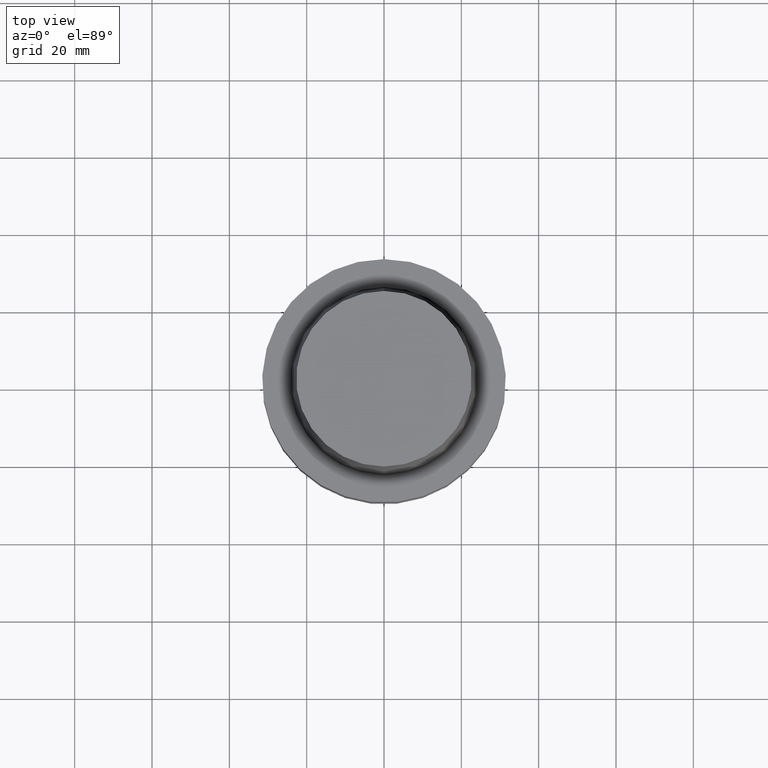
[diagram: clean part render]
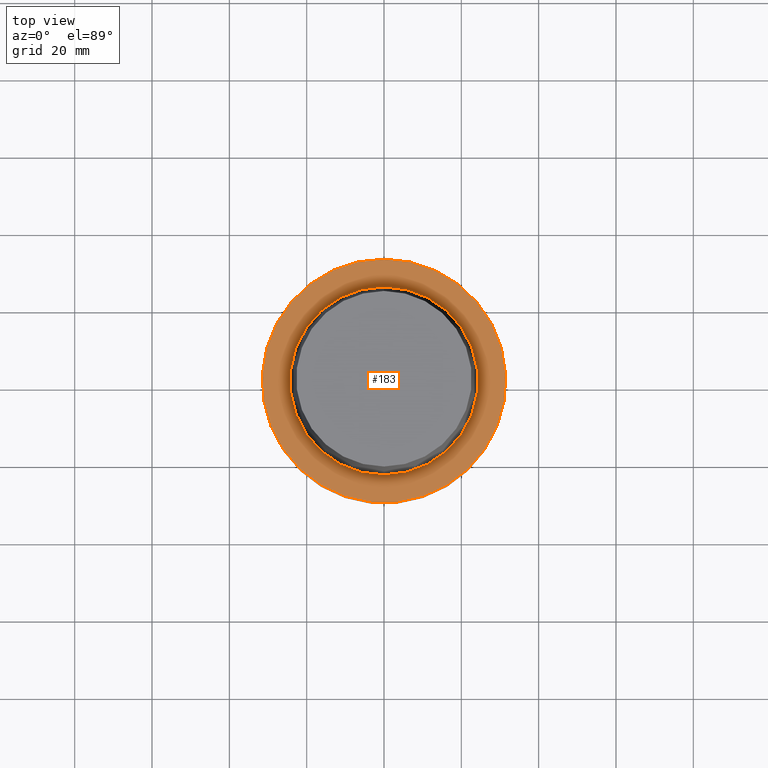
[diagram: same view with one face highlighted and labeled with its STEP entity id]
A machine part, top view. The second image highlights one B-rep face of the part: STEP entity #183.
In plain terms, the highlighted planar face has unit normal (-0, -0, 1).
Its self-contained STEP definition (entity closure, byte-faithful):
#156=EDGE_CURVE('Unnamed[1]',#334,#334,#335,.T.);
#172=EDGE_CURVE('Unnamed[1]',#358,#358,#359,.T.);
#183=ADVANCED_FACE('Unnamed[1]',(#374,#375),#376,.T.);
#334=VERTEX_POINT('',#554);
#335=CIRCLE('',#555,31.5000000000001);
#358=VERTEX_POINT('',#583);
#359=CIRCLE('',#584,24.315);
#374=FACE_BOUND('',#604,.T.);
#375=FACE_OUTER_BOUND('',#605,.T.);
#376=PLANE('',#606);
#554=CARTESIAN_POINT('',(-3.88267476788467E-031,31.5000000000001,3.85763741731417E-015));
#555=AXIS2_PLACEMENT_3D('',#765,#766,#767);
#583=CARTESIAN_POINT('',(-2.99705514225764E-031,24.315,2.97772869212679E-015));
#584=AXIS2_PLACEMENT_3D('',#790,#791,#792);
#604=EDGE_LOOP('',(#806));
#605=EDGE_LOOP('',(#807));
#606=AXIS2_PLACEMENT_3D('',#808,#809,#810);
#765=CARTESIAN_POINT('',(0.0,0.0,0.0));
#766=DIRECTION('',(-6.12323399573677E-017,-1.22464679914735E-016,1.0));
#767=DIRECTION('',(-1.23259516440783E-032,1.0,1.22464679914735E-016));
#790=CARTESIAN_POINT('',(0.0,0.0,0.0));
#791=DIRECTION('',(-6.12323399573677E-017,-1.22464679914735E-016,1.0));
#792=DIRECTION('',(-1.23259516440783E-032,1.0,1.22464679914735E-016));
#806=ORIENTED_EDGE('',*,*,#172,.F.);
#807=ORIENTED_EDGE('',*,*,#156,.T.);
#808=CARTESIAN_POINT('',(-3.43986495507116E-031,27.9075,3.41768305472048E-015));
#809=DIRECTION('',(-6.12323399573677E-017,-1.22464679914735E-016,1.0));
#810=DIRECTION('',(-1.23259516440783E-032,1.0,1.22464679914735E-016));